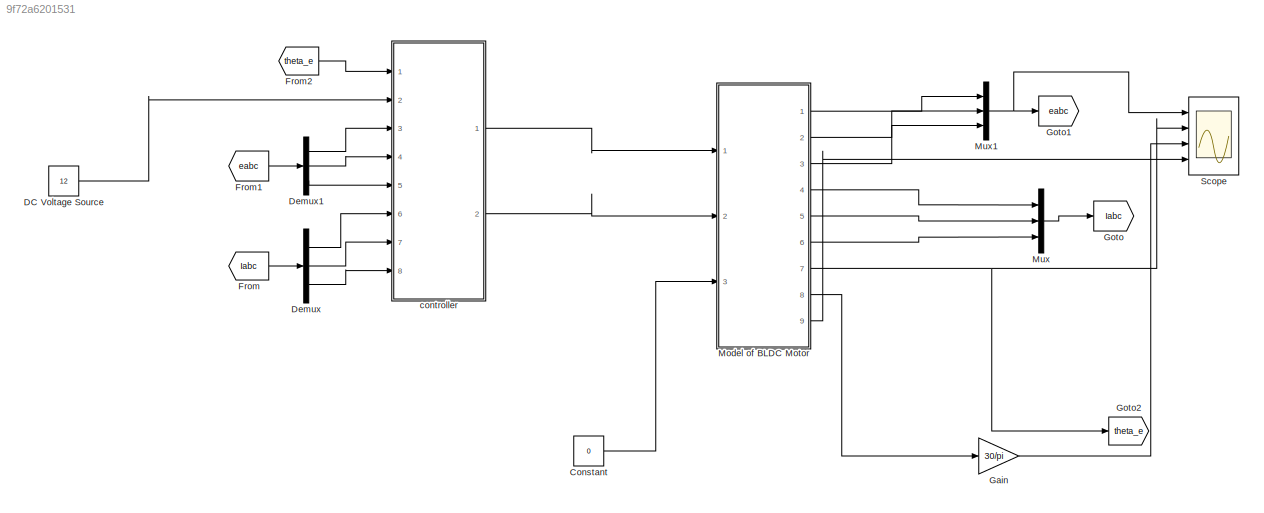
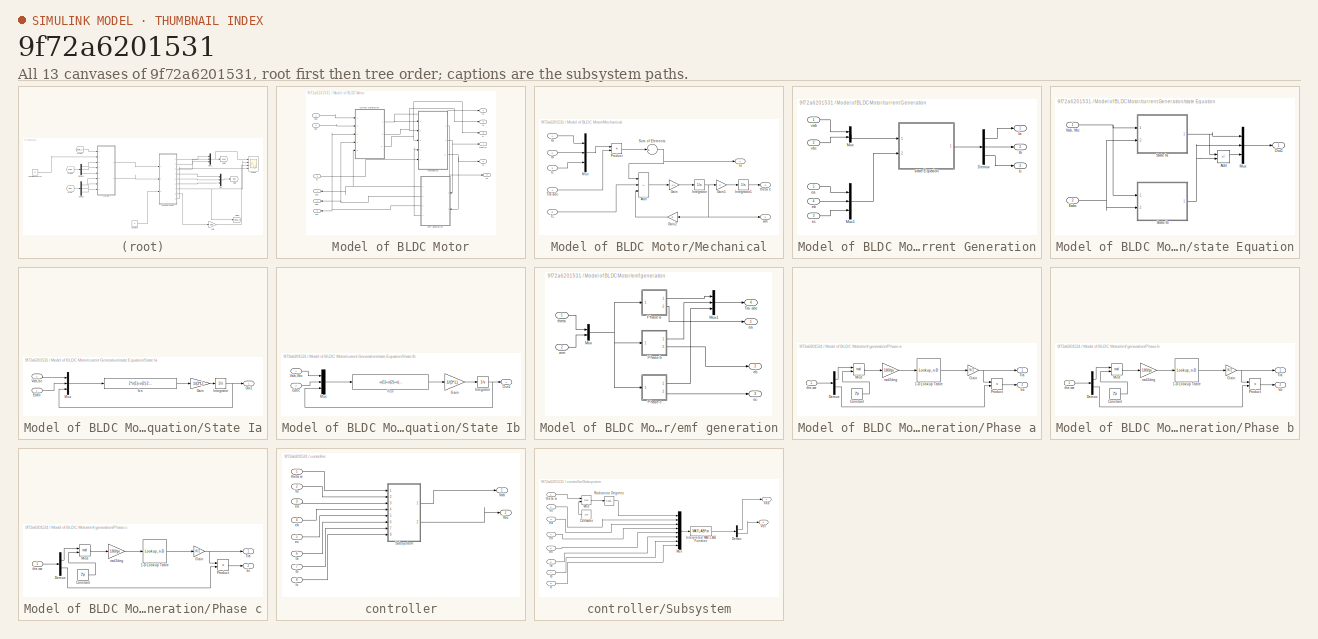
[diagram: thumbnail index - all 13 canvases of the model, root first then tree order]
MODEL slx_9f72a6201531
KIND model
CONFIG AbsTol = auto
CONFIG EnableMultiTasking = off
CONFIG FixedStep = auto
CONFIG MaxStep = auto
CONFIG MinStep = auto
CONFIG RelTol = 1e-3
CONFIG SampleTimeConstraint = Unconstrained
CONFIG Solver = VariableStepAuto
CONFIG SolverName = VariableStepAuto
CONFIG StartTime = 0.0
CONFIG StopTime = 10.0
WORKSPACE source: mxarray member
WORKSPACE B: Simulink.Parameter (value not decoded)
WORKSPACE J: Simulink.Parameter (value not decoded)
WORKSPACE K: Simulink.Parameter (value not decoded)
WORKSPACE L: Simulink.Parameter (value not decoded)
WORKSPACE P: Simulink.Parameter (value not decoded)
WORKSPACE R: Simulink.Parameter (value not decoded)
BLOCK [Constant] Constant
  Value = 0
BLOCK [Constant] DC Voltage Source
  Value = 12
BLOCK [Demux] Demux
  Outputs = 3
  Ports = [1, 3]
BLOCK [Demux] Demux1
  Outputs = 3
  Ports = [1, 3]
BLOCK [From] From
  GotoTag = Iabc
BLOCK [From] From1
  GotoTag = eabc
BLOCK [From] From2
  GotoTag = theta_e
BLOCK [Gain] Gain
  Gain = 30/pi
BLOCK [Goto] Goto
  GotoTag = Iabc
BLOCK [Goto] Goto1
  GotoTag = eabc
BLOCK [Goto] Goto2
  GotoTag = theta_e
BLOCK [SubSystem] Model of BLDC Motor
  Ports = [3, 9]
  RequestExecContextInheritance = off
BLOCK [Outport] Model of BLDC Motor/Ia
  Port = 4
BLOCK [Outport] Model of BLDC Motor/Ib
  Port = 5
BLOCK [Outport] Model of BLDC Motor/Ic
  Port = 6
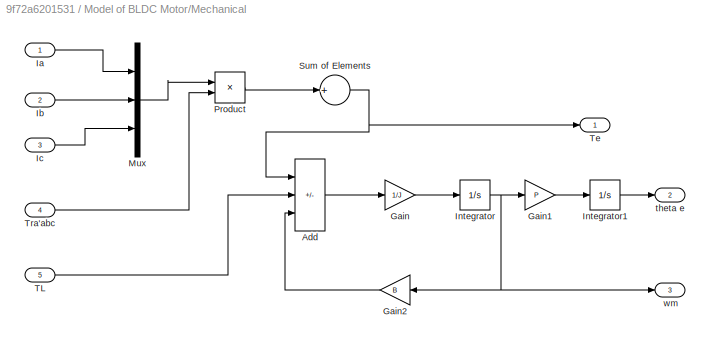
BLOCK [SubSystem] Model of BLDC Motor/Mechanical
  Ports = [5, 3]
  RequestExecContextInheritance = off
BLOCK [Sum] Model of BLDC Motor/Mechanical/Add
  IconShape = rectangular
  Inputs = +--
  Ports = [3, 1]
BLOCK [Gain] Model of BLDC Motor/Mechanical/Gain
  Gain = 1/J
BLOCK [Gain] Model of BLDC Motor/Mechanical/Gain1
  Gain = P
BLOCK [Gain] Model of BLDC Motor/Mechanical/Gain2
  Gain = B
BLOCK [Inport] Model of BLDC Motor/Mechanical/Ia
BLOCK [Inport] Model of BLDC Motor/Mechanical/Ib
  Port = 2
BLOCK [Inport] Model of BLDC Motor/Mechanical/Ic
  Port = 3
BLOCK [Integrator] Model of BLDC Motor/Mechanical/Integrator
  Ports = [1, 1]
BLOCK [Integrator] Model of BLDC Motor/Mechanical/Integrator1
  Ports = [1, 1]
BLOCK [Mux] Model of BLDC Motor/Mechanical/Mux
  DisplayOption = bar
  Inputs = 3
  Ports = [3, 1]
BLOCK [Product] Model of BLDC Motor/Mechanical/Product
  Ports = [2, 1]
BLOCK [Sum] Model of BLDC Motor/Mechanical/Sum of Elements
  Inputs = +
  Ports = [1, 1]
BLOCK [Inport] Model of BLDC Motor/Mechanical/TL
  Port = 5
BLOCK [Outport] Model of BLDC Motor/Mechanical/Te
BLOCK [Inport] Model of BLDC Motor/Mechanical/Tra'abc
  Port = 4
BLOCK [Outport] Model of BLDC Motor/Mechanical/theta e
  Port = 2
BLOCK [Outport] Model of BLDC Motor/Mechanical/wm
  Port = 3
BLOCK [Inport] Model of BLDC Motor/TL
  Port = 3
BLOCK [Outport] Model of BLDC Motor/Te
  Port = 9
BLOCK [Inport] Model of BLDC Motor/Vab
BLOCK [Inport] Model of BLDC Motor/Vbc
  Port = 2
BLOCK [SubSystem] Model of BLDC Motor/current Generation
  Ports = [5, 3]
  RequestExecContextInheritance = off
BLOCK [Demux] Model of BLDC Motor/current Generation/Demux
  Outputs = 3
  Ports = [1, 3]
BLOCK [Outport] Model of BLDC Motor/current Generation/Ia
BLOCK [Outport] Model of BLDC Motor/current Generation/Ib
  Port = 2
BLOCK [Outport] Model of BLDC Motor/current Generation/Ic
  Port = 3
BLOCK [Mux] Model of BLDC Motor/current Generation/Mux
  DisplayOption = bar
  Inputs = 2
  Ports = [2, 1]
BLOCK [Mux] Model of BLDC Motor/current Generation/Mux1
  DisplayOption = bar
  Inputs = 3
  Ports = [3, 1]
BLOCK [Inport] Model of BLDC Motor/current Generation/ea
  Port = 5
BLOCK [Inport] Model of BLDC Motor/current Generation/eb
  Port = 4
BLOCK [Inport] Model of BLDC Motor/current Generation/ec
  Port = 3
BLOCK [SubSystem] Model of BLDC Motor/current Generation/state Equation
  Ports = [2, 1]
  RequestExecContextInheritance = off
BLOCK [Sum] Model of BLDC Motor/current Generation/state Equation/Add
  IconShape = rectangular
  Inputs = --
  Ports = [2, 1]
BLOCK [Inport] Model of BLDC Motor/current Generation/state Equation/Eabc
  Port = 2
BLOCK [Mux] Model of BLDC Motor/current Generation/state Equation/Mux
  DisplayOption = bar
  Inputs = 3
  Ports = [3, 1]
BLOCK [Outport] Model of BLDC Motor/current Generation/state Equation/Out1
BLOCK [SubSystem] Model of BLDC Motor/current Generation/state Equation/State Ia
  Ports = [2, 1]
  RequestExecContextInheritance = off
BLOCK [Inport] Model of BLDC Motor/current Generation/state Equation/State Ia/Eabc
  Port = 2
BLOCK [Gain] Model of BLDC Motor/current Generation/state Equation/State Ia/Gain
  Gain = 1/(3*L)
BLOCK [Integrator] Model of BLDC Motor/current Generation/state Equation/State Ia/Integrator
  Ports = [1, 1]
BLOCK [Mux] Model of BLDC Motor/current Generation/state Equation/State Ia/Mux
  DisplayOption = bar
  Inputs = 3
  Ports = [3, 1]
BLOCK [Outport] Model of BLDC Motor/current Generation/state Equation/State Ia/Out1
BLOCK [Inport] Model of BLDC Motor/current Generation/state Equation/State Ia/Vab,bc
BLOCK [Fcn] Model of BLDC Motor/current Generation/state Equation/State Ia/fcn
  Expr = 2*u(1)+u(2)-2*u(3)+u(4)+u(5)-3*R*u(6)
BLOCK [SubSystem] Model of BLDC Motor/current Generation/state Equation/State Ib
  Ports = [2, 1]
  RequestExecContextInheritance = off
BLOCK [Inport] Model of BLDC Motor/current Generation/state Equation/State Ib/Eabc
  Port = 2
BLOCK [Fcn] Model of BLDC Motor/current Generation/state Equation/State Ib/Fcn
  Expr = -u(1)+u(2)+u(3)-2*u(4)+u(5)-3*R*u(6)
BLOCK [Gain] Model of BLDC Motor/current Generation/state Equation/State Ib/Gain
  Gain = 1/(3*L)
BLOCK [Integrator] Model of BLDC Motor/current Generation/state Equation/State Ib/Integrator
  Ports = [1, 1]
BLOCK [Mux] Model of BLDC Motor/current Generation/state Equation/State Ib/Mux
  DisplayOption = bar
  Inputs = 3
  Ports = [3, 1]
BLOCK [Outport] Model of BLDC Motor/current Generation/state Equation/State Ib/Out1
BLOCK [Inport] Model of BLDC Motor/current Generation/state Equation/State Ib/Vab,Vbc
BLOCK [Inport] Model of BLDC Motor/current Generation/state Equation/Vab, Vbc
BLOCK [Inport] Model of BLDC Motor/current Generation/vab
BLOCK [Inport] Model of BLDC Motor/current Generation/vbc
  Port = 2
BLOCK [Outport] Model of BLDC Motor/ea1
BLOCK [Outport] Model of BLDC Motor/eb1
  Port = 2
BLOCK [Outport] Model of BLDC Motor/ec1
  Port = 3
BLOCK [SubSystem] Model of BLDC Motor/emf generation
  Ports = [2, 4]
  RequestExecContextInheritance = off
BLOCK [Mux] Model of BLDC Motor/emf generation/Mux
  DisplayOption = bar
  Inputs = 2
  Ports = [2, 1]
BLOCK [Mux] Model of BLDC Motor/emf generation/Mux1
  DisplayOption = bar
  Inputs = 3
  Ports = [3, 1]
BLOCK [SubSystem] Model of BLDC Motor/emf generation/Phase a
  Ports = [1, 2]
  RequestExecContextInheritance = off
BLOCK [Lookup_n-D] Model of BLDC Motor/emf generation/Phase a/1-D Lookup Table
  BreakpointsForDimension1 = [-5:5]
  InternalRulePriority = Speed
  NumberOfTableDimensions = 1
  Ports = [1, 1]
  RndMeth = Simplest
  Table = tanh([-5:5])
BLOCK [Constant] Model of BLDC Motor/emf generation/Phase a/Constant
  Value = 2*pi
BLOCK [Demux] Model of BLDC Motor/emf generation/Phase a/Demux
  Outputs = 2
  Ports = [1, 2]
BLOCK [Outport] Model of BLDC Motor/emf generation/Phase a/Ea
  Port = 2
BLOCK [Gain] Model of BLDC Motor/emf generation/Phase a/Gain
  Gain = K/2
BLOCK [Math] Model of BLDC Motor/emf generation/Phase a/Mod
  Operator = mod
  Ports = [2, 1]
BLOCK [Product] Model of BLDC Motor/emf generation/Phase a/Product
  Ports = [2, 1]
BLOCK [Outport] Model of BLDC Motor/emf generation/Phase a/Tra'
BLOCK [Gain] Model of BLDC Motor/emf generation/Phase a/rad2deg
  Gain = 180/pi
BLOCK [Inport] Model of BLDC Motor/emf generation/Phase a/the,we
BLOCK [SubSystem] Model of BLDC Motor/emf generation/Phase b
  Ports = [1, 2]
  RequestExecContextInheritance = off
BLOCK [Lookup_n-D] Model of BLDC Motor/emf generation/Phase b/1-D Lookup Table
  BreakpointsForDimension1 = [-5:5]
  InternalRulePriority = Speed
  NumberOfTableDimensions = 1
  Ports = [1, 1]
  RndMeth = Simplest
  Table = tanh([-5:5])
BLOCK [Constant] Model of BLDC Motor/emf generation/Phase b/Constant
  Value = 2*pi
BLOCK [Demux] Model of BLDC Motor/emf generation/Phase b/Demux
  Outputs = 2
  Ports = [1, 2]
BLOCK [Outport] Model of BLDC Motor/emf generation/Phase b/Eb
  Port = 2
BLOCK [Gain] Model of BLDC Motor/emf generation/Phase b/Gain
  Gain = K/2
BLOCK [Math] Model of BLDC Motor/emf generation/Phase b/Mod
  Operator = mod
  Ports = [2, 1]
BLOCK [Product] Model of BLDC Motor/emf generation/Phase b/Product
  Ports = [2, 1]
BLOCK [Outport] Model of BLDC Motor/emf generation/Phase b/Tra'
BLOCK [Gain] Model of BLDC Motor/emf generation/Phase b/rad2deg
  Gain = 180/pi
BLOCK [Inport] Model of BLDC Motor/emf generation/Phase b/the,we
BLOCK [SubSystem] Model of BLDC Motor/emf generation/Phase c
  Ports = [1, 2]
  RequestExecContextInheritance = off
BLOCK [Lookup_n-D] Model of BLDC Motor/emf generation/Phase c/1-D Lookup Table
  BreakpointsForDimension1 = [-5:5]
  InternalRulePriority = Speed
  NumberOfTableDimensions = 1
  Ports = [1, 1]
  RndMeth = Simplest
  Table = tanh([-5:5])
BLOCK [Constant] Model of BLDC Motor/emf generation/Phase c/Constant
  Value = 2*pi
BLOCK [Demux] Model of BLDC Motor/emf generation/Phase c/Demux
  Outputs = 2
  Ports = [1, 2]
BLOCK [Outport] Model of BLDC Motor/emf generation/Phase c/Ec
  Port = 2
BLOCK [Gain] Model of BLDC Motor/emf generation/Phase c/Gain
  Gain = K/2
BLOCK [Math] Model of BLDC Motor/emf generation/Phase c/Mod
  Operator = mod
  Ports = [2, 1]
BLOCK [Product] Model of BLDC Motor/emf generation/Phase c/Product
  Ports = [2, 1]
BLOCK [Outport] Model of BLDC Motor/emf generation/Phase c/Tra'
BLOCK [Gain] Model of BLDC Motor/emf generation/Phase c/rad2deg
  Gain = 180/pi
BLOCK [Inport] Model of BLDC Motor/emf generation/Phase c/the,we
BLOCK [Outport] Model of BLDC Motor/emf generation/Tra' abc
  Port = 4
BLOCK [Outport] Model of BLDC Motor/emf generation/ea
BLOCK [Outport] Model of BLDC Motor/emf generation/eb
  Port = 2
BLOCK [Outport] Model of BLDC Motor/emf generation/ec
  Port = 3
BLOCK [Inport] Model of BLDC Motor/emf generation/theta
BLOCK [Inport] Model of BLDC Motor/emf generation/wm
  Port = 2
BLOCK [Outport] Model of BLDC Motor/theta e
  Port = 7
BLOCK [Outport] Model of BLDC Motor/w
  Port = 8
BLOCK [Mux] Mux
  DisplayOption = bar
  Inputs = 3
  Ports = [3, 1]
BLOCK [Mux] Mux1
  DisplayOption = bar
  Inputs = 3
  Ports = [3, 1]
BLOCK [Scope] Scope
  Floating = off
  NumInputPorts = 4
  Ports = [4]
  ScopeSpecificationString = Simulink.scopes.TimeScopeBlockCfg('CurrentConfiguration', extmgr.ConfigurationSet(extmgr.Configuration('Core','General UI',true),extmgr.Configuration('Core','Source UI',true),extmgr.Configuration('Sources','WiredSimulink',true),extmgr.Configuration('Visuals','Time Domain',true,'SerializedDisplays',{struct('MinYLimReal','-10','MaxYLimReal','10','YLabelReal','','MinYLimMag','0','MaxYLimMag','10','Le...<+2926ch>
BLOCK [SubSystem] controller
  Ports = [8, 2]
  RequestExecContextInheritance = off
BLOCK [Inport] controller/Ia
  Port = 6
BLOCK [Inport] controller/Ib
  Port = 7
BLOCK [Inport] controller/Ic
  Port = 8
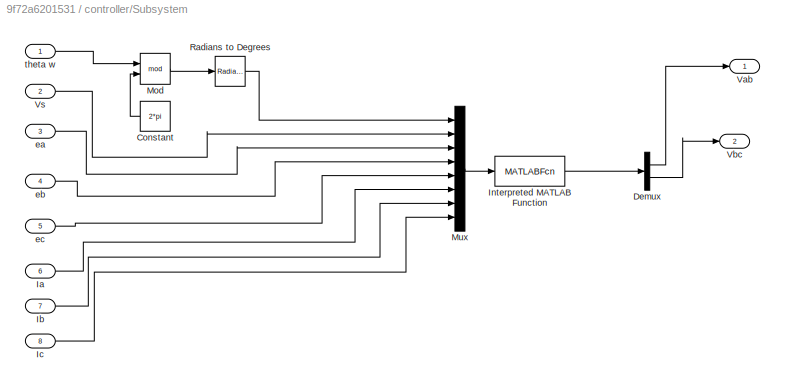
BLOCK [SubSystem] controller/Subsystem
  Ports = [8, 2]
  RequestExecContextInheritance = off
BLOCK [Constant] controller/Subsystem/Constant
  Value = 2*pi
BLOCK [Demux] controller/Subsystem/Demux
  Outputs = 2
  Ports = [1, 2]
BLOCK [Inport] controller/Subsystem/Ia
  Port = 6
BLOCK [Inport] controller/Subsystem/Ib
  Port = 7
BLOCK [Inport] controller/Subsystem/Ic
  Port = 8
BLOCK [MATLABFcn] controller/Subsystem/Interpreted MATLAB Function
  Ports = [1, 1]
BLOCK [Math] controller/Subsystem/Mod
  Operator = mod
  Ports = [2, 1]
BLOCK [Mux] controller/Subsystem/Mux
  DisplayOption = bar
  Inputs = 8
  Ports = [8, 1]
BLOCK [Reference] controller/Subsystem/Radians to Degrees  REF=simulink_extras/Transformations/Radians
to Degrees
  Ports = [1, 1]
  SourceBlock = simulink_extras/Transformations/Radians\nto Degrees
  SourceProductBaseCode = SL
  SourceType = RadiansToDegrees
BLOCK [Outport] controller/Subsystem/Vab
BLOCK [Outport] controller/Subsystem/Vbc
  Port = 2
BLOCK [Inport] controller/Subsystem/Vs
  Port = 2
BLOCK [Inport] controller/Subsystem/ea
  Port = 3
BLOCK [Inport] controller/Subsystem/eb
  Port = 4
BLOCK [Inport] controller/Subsystem/ec
  Port = 5
BLOCK [Inport] controller/Subsystem/theta w
BLOCK [Outport] controller/Vab
BLOCK [Outport] controller/Vbc
  Port = 2
BLOCK [Inport] controller/Vs
  Port = 2
BLOCK [Inport] controller/ea
  Port = 3
BLOCK [Inport] controller/eb
  Port = 4
BLOCK [Inport] controller/ec
  Port = 5
BLOCK [Inport] controller/theta w
LINE Constant:1 -> Model of BLDC Motor:3
LINE DC Voltage Source:1 -> controller:2
LINE Demux1:1 -> controller:3
LINE Demux1:2 -> controller:4
LINE Demux1:3 -> controller:5
LINE Demux:1 -> controller:6
LINE Demux:2 -> controller:7
LINE Demux:3 -> controller:8
LINE From1:1 -> Demux1:1
LINE From2:1 -> controller:1
LINE From:1 -> Demux:1
LINE Gain:1 -> Scope:3
LINE Model of BLDC Motor/Mechanical/Add:1 -> Model of BLDC Motor/Mechanical/Gain:1
LINE Model of BLDC Motor/Mechanical/Gain1:1 -> Model of BLDC Motor/Mechanical/Integrator1:1
LINE Model of BLDC Motor/Mechanical/Gain2:1 -> Model of BLDC Motor/Mechanical/Add:3
LINE Model of BLDC Motor/Mechanical/Gain:1 -> Model of BLDC Motor/Mechanical/Integrator:1
LINE Model of BLDC Motor/Mechanical/Ia:1 -> Model of BLDC Motor/Mechanical/Mux:1
LINE Model of BLDC Motor/Mechanical/Ib:1 -> Model of BLDC Motor/Mechanical/Mux:2
LINE Model of BLDC Motor/Mechanical/Ic:1 -> Model of BLDC Motor/Mechanical/Mux:3
LINE Model of BLDC Motor/Mechanical/Integrator1:1 -> Model of BLDC Motor/Mechanical/theta e:1
NET Model of BLDC Motor/Mechanical/Integrator:1 -> Model of BLDC Motor/Mechanical/Gain1:1, Model of BLDC Motor/Mechanical/Gain2:1, Model of BLDC Motor/Mechanical/wm:1
LINE Model of BLDC Motor/Mechanical/Mux:1 -> Model of BLDC Motor/Mechanical/Product:1
LINE Model of BLDC Motor/Mechanical/Product:1 -> Model of BLDC Motor/Mechanical/Sum of Elements:1
NET Model of BLDC Motor/Mechanical/Sum of Elements:1 -> Model of BLDC Motor/Mechanical/Add:1, Model of BLDC Motor/Mechanical/Te:1
LINE Model of BLDC Motor/Mechanical/TL:1 -> Model of BLDC Motor/Mechanical/Add:2
LINE Model of BLDC Motor/Mechanical/Tra'abc:1 -> Model of BLDC Motor/Mechanical/Product:2
LINE Model of BLDC Motor/Mechanical:1 -> Model of BLDC Motor/Te:1
NET Model of BLDC Motor/Mechanical:2 -> Model of BLDC Motor/emf generation:1, Model of BLDC Motor/theta e:1
NET Model of BLDC Motor/Mechanical:3 -> Model of BLDC Motor/emf generation:2, Model of BLDC Motor/w:1
LINE Model of BLDC Motor/TL:1 -> Model of BLDC Motor/Mechanical:5
LINE Model of BLDC Motor/Vab:1 -> Model of BLDC Motor/current Generation:1
LINE Model of BLDC Motor/Vbc:1 -> Model of BLDC Motor/current Generation:2
LINE Model of BLDC Motor/current Generation/Demux:1 -> Model of BLDC Motor/current Generation/Ia:1
LINE Model of BLDC Motor/current Generation/Demux:2 -> Model of BLDC Motor/current Generation/Ib:1
LINE Model of BLDC Motor/current Generation/Demux:3 -> Model of BLDC Motor/current Generation/Ic:1
LINE Model of BLDC Motor/current Generation/Mux1:1 -> Model of BLDC Motor/current Generation/state Equation:2
LINE Model of BLDC Motor/current Generation/Mux:1 -> Model of BLDC Motor/current Generation/state Equation:1
LINE Model of BLDC Motor/current Generation/ea:1 -> Model of BLDC Motor/current Generation/Mux1:1
LINE Model of BLDC Motor/current Generation/eb:1 -> Model of BLDC Motor/current Generation/Mux1:2
LINE Model of BLDC Motor/current Generation/ec:1 -> Model of BLDC Motor/current Generation/Mux1:3
LINE Model of BLDC Motor/current Generation/state Equation/Add:1 -> Model of BLDC Motor/current Generation/state Equation/Mux:3
NET Model of BLDC Motor/current Generation/state Equation/Eabc:1 -> Model of BLDC Motor/current Generation/state Equation/State Ia:2, Model of BLDC Motor/current Generation/state Equation/State Ib:2
LINE Model of BLDC Motor/current Generation/state Equation/Mux:1 -> Model of BLDC Motor/current Generation/state Equation/Out1:1
LINE Model of BLDC Motor/current Generation/state Equation/State Ia/Eabc:1 -> Model of BLDC Motor/current Generation/state Equation/State Ia/Mux:2
LINE Model of BLDC Motor/current Generation/state Equation/State Ia/Gain:1 -> Model of BLDC Motor/current Generation/state Equation/State Ia/Integrator:1
NET Model of BLDC Motor/current Generation/state Equation/State Ia/Integrator:1 -> Model of BLDC Motor/current Generation/state Equation/State Ia/Mux:3, Model of BLDC Motor/current Generation/state Equation/State Ia/Out1:1
LINE Model of BLDC Motor/current Generation/state Equation/State Ia/Mux:1 -> Model of BLDC Motor/current Generation/state Equation/State Ia/fcn:1
LINE Model of BLDC Motor/current Generation/state Equation/State Ia/Vab,bc:1 -> Model of BLDC Motor/current Generation/state Equation/State Ia/Mux:1
LINE Model of BLDC Motor/current Generation/state Equation/State Ia/fcn:1 -> Model of BLDC Motor/current Generation/state Equation/State Ia/Gain:1
NET Model of BLDC Motor/current Generation/state Equation/State Ia:1 -> Model of BLDC Motor/current Generation/state Equation/Add:1, Model of BLDC Motor/current Generation/state Equation/Mux:1
LINE Model of BLDC Motor/current Generation/state Equation/State Ib/Eabc:1 -> Model of BLDC Motor/current Generation/state Equation/State Ib/Mux:2
LINE Model of BLDC Motor/current Generation/state Equation/State Ib/Fcn:1 -> Model of BLDC Motor/current Generation/state Equation/State Ib/Gain:1
LINE Model of BLDC Motor/current Generation/state Equation/State Ib/Gain:1 -> Model of BLDC Motor/current Generation/state Equation/State Ib/Integrator:1
NET Model of BLDC Motor/current Generation/state Equation/State Ib/Integrator:1 -> Model of BLDC Motor/current Generation/state Equation/State Ib/Mux:3, Model of BLDC Motor/current Generation/state Equation/State Ib/Out1:1
LINE Model of BLDC Motor/current Generation/state Equation/State Ib/Mux:1 -> Model of BLDC Motor/current Generation/state Equation/State Ib/Fcn:1
LINE Model of BLDC Motor/current Generation/state Equation/State Ib/Vab,Vbc:1 -> Model of BLDC Motor/current Generation/state Equation/State Ib/Mux:1
NET Model of BLDC Motor/current Generation/state Equation/State Ib:1 -> Model of BLDC Motor/current Generation/state Equation/Add:2, Model of BLDC Motor/current Generation/state Equation/Mux:2
NET Model of BLDC Motor/current Generation/state Equation/Vab, Vbc:1 -> Model of BLDC Motor/current Generation/state Equation/State Ia:1, Model of BLDC Motor/current Generation/state Equation/State Ib:1
LINE Model of BLDC Motor/current Generation/state Equation:1 -> Model of BLDC Motor/current Generation/Demux:1
LINE Model of BLDC Motor/current Generation/vab:1 -> Model of BLDC Motor/current Generation/Mux:1
LINE Model of BLDC Motor/current Generation/vbc:1 -> Model of BLDC Motor/current Generation/Mux:2
NET Model of BLDC Motor/current Generation:1 -> Model of BLDC Motor/Ia:1, Model of BLDC Motor/Mechanical:1
NET Model of BLDC Motor/current Generation:2 -> Model of BLDC Motor/Ib:1, Model of BLDC Motor/Mechanical:2
NET Model of BLDC Motor/current Generation:3 -> Model of BLDC Motor/Ic:1, Model of BLDC Motor/Mechanical:3
LINE Model of BLDC Motor/emf generation/Mux1:1 -> Model of BLDC Motor/emf generation/Tra' abc:1
NET Model of BLDC Motor/emf generation/Mux:1 -> Model of BLDC Motor/emf generation/Phase a:1, Model of BLDC Motor/emf generation/Phase b:1, Model of BLDC Motor/emf generation/Phase c:1
LINE Model of BLDC Motor/emf generation/Phase a/1-D Lookup Table:1 -> Model of BLDC Motor/emf generation/Phase a/Gain:1
LINE Model of BLDC Motor/emf generation/Phase a/Constant:1 -> Model of BLDC Motor/emf generation/Phase a/Mod:2
LINE Model of BLDC Motor/emf generation/Phase a/Demux:1 -> Model of BLDC Motor/emf generation/Phase a/Mod:1
LINE Model of BLDC Motor/emf generation/Phase a/Demux:2 -> Model of BLDC Motor/emf generation/Phase a/Product:2
NET Model of BLDC Motor/emf generation/Phase a/Gain:1 -> Model of BLDC Motor/emf generation/Phase a/Product:1, Model of BLDC Motor/emf generation/Phase a/Tra':1
LINE Model of BLDC Motor/emf generation/Phase a/Mod:1 -> Model of BLDC Motor/emf generation/Phase a/rad2deg:1
LINE Model of BLDC Motor/emf generation/Phase a/Product:1 -> Model of BLDC Motor/emf generation/Phase a/Ea:1
LINE Model of BLDC Motor/emf generation/Phase a/rad2deg:1 -> Model of BLDC Motor/emf generation/Phase a/1-D Lookup Table:1
LINE Model of BLDC Motor/emf generation/Phase a/the,we:1 -> Model of BLDC Motor/emf generation/Phase a/Demux:1
LINE Model of BLDC Motor/emf generation/Phase a:1 -> Model of BLDC Motor/emf generation/Mux1:1
LINE Model of BLDC Motor/emf generation/Phase a:2 -> Model of BLDC Motor/emf generation/ea:1
LINE Model of BLDC Motor/emf generation/Phase b/1-D Lookup Table:1 -> Model of BLDC Motor/emf generation/Phase b/Gain:1
LINE Model of BLDC Motor/emf generation/Phase b/Constant:1 -> Model of BLDC Motor/emf generation/Phase b/Mod:2
LINE Model of BLDC Motor/emf generation/Phase b/Demux:1 -> Model of BLDC Motor/emf generation/Phase b/Mod:1
LINE Model of BLDC Motor/emf generation/Phase b/Demux:2 -> Model of BLDC Motor/emf generation/Phase b/Product:2
NET Model of BLDC Motor/emf generation/Phase b/Gain:1 -> Model of BLDC Motor/emf generation/Phase b/Product:1, Model of BLDC Motor/emf generation/Phase b/Tra':1
LINE Model of BLDC Motor/emf generation/Phase b/Mod:1 -> Model of BLDC Motor/emf generation/Phase b/rad2deg:1
LINE Model of BLDC Motor/emf generation/Phase b/Product:1 -> Model of BLDC Motor/emf generation/Phase b/Eb:1
LINE Model of BLDC Motor/emf generation/Phase b/rad2deg:1 -> Model of BLDC Motor/emf generation/Phase b/1-D Lookup Table:1
LINE Model of BLDC Motor/emf generation/Phase b/the,we:1 -> Model of BLDC Motor/emf generation/Phase b/Demux:1
LINE Model of BLDC Motor/emf generation/Phase b:1 -> Model of BLDC Motor/emf generation/Mux1:2
LINE Model of BLDC Motor/emf generation/Phase b:2 -> Model of BLDC Motor/emf generation/eb:1
LINE Model of BLDC Motor/emf generation/Phase c/1-D Lookup Table:1 -> Model of BLDC Motor/emf generation/Phase c/Gain:1
LINE Model of BLDC Motor/emf generation/Phase c/Constant:1 -> Model of BLDC Motor/emf generation/Phase c/Mod:2
LINE Model of BLDC Motor/emf generation/Phase c/Demux:1 -> Model of BLDC Motor/emf generation/Phase c/Mod:1
LINE Model of BLDC Motor/emf generation/Phase c/Demux:2 -> Model of BLDC Motor/emf generation/Phase c/Product:2
NET Model of BLDC Motor/emf generation/Phase c/Gain:1 -> Model of BLDC Motor/emf generation/Phase c/Product:1, Model of BLDC Motor/emf generation/Phase c/Tra':1
LINE Model of BLDC Motor/emf generation/Phase c/Mod:1 -> Model of BLDC Motor/emf generation/Phase c/rad2deg:1
LINE Model of BLDC Motor/emf generation/Phase c/Product:1 -> Model of BLDC Motor/emf generation/Phase c/Ec:1
LINE Model of BLDC Motor/emf generation/Phase c/rad2deg:1 -> Model of BLDC Motor/emf generation/Phase c/1-D Lookup Table:1
LINE Model of BLDC Motor/emf generation/Phase c/the,we:1 -> Model of BLDC Motor/emf generation/Phase c/Demux:1
LINE Model of BLDC Motor/emf generation/Phase c:1 -> Model of BLDC Motor/emf generation/Mux1:3
LINE Model of BLDC Motor/emf generation/Phase c:2 -> Model of BLDC Motor/emf generation/ec:1
LINE Model of BLDC Motor/emf generation/theta:1 -> Model of BLDC Motor/emf generation/Mux:1
LINE Model of BLDC Motor/emf generation/wm:1 -> Model of BLDC Motor/emf generation/Mux:2
NET Model of BLDC Motor/emf generation:1 -> Model of BLDC Motor/current Generation:5, Model of BLDC Motor/ea1:1
NET Model of BLDC Motor/emf generation:2 -> Model of BLDC Motor/current Generation:4, Model of BLDC Motor/eb1:1
NET Model of BLDC Motor/emf generation:3 -> Model of BLDC Motor/current Generation:3, Model of BLDC Motor/ec1:1
LINE Model of BLDC Motor/emf generation:4 -> Model of BLDC Motor/Mechanical:4
LINE Model of BLDC Motor:1 -> Mux1:1
LINE Model of BLDC Motor:2 -> Mux1:2
LINE Model of BLDC Motor:3 -> Mux1:3
LINE Model of BLDC Motor:4 -> Mux:1
LINE Model of BLDC Motor:5 -> Mux:2
LINE Model of BLDC Motor:6 -> Mux:3
NET Model of BLDC Motor:7 -> Goto2:1, Scope:2
LINE Model of BLDC Motor:8 -> Gain:1
LINE Model of BLDC Motor:9 -> Scope:4
NET Mux1:1 -> Goto1:1, Scope:1
LINE Mux:1 -> Goto:1
LINE controller/Ia:1 -> controller/Subsystem:6
LINE controller/Ib:1 -> controller/Subsystem:7
LINE controller/Ic:1 -> controller/Subsystem:8
LINE controller/Subsystem/Constant:1 -> controller/Subsystem/Mod:2
LINE controller/Subsystem/Demux:1 -> controller/Subsystem/Vab:1
LINE controller/Subsystem/Demux:2 -> controller/Subsystem/Vbc:1
LINE controller/Subsystem/Ia:1 -> controller/Subsystem/Mux:6
LINE controller/Subsystem/Ib:1 -> controller/Subsystem/Mux:7
LINE controller/Subsystem/Ic:1 -> controller/Subsystem/Mux:8
LINE controller/Subsystem/Interpreted MATLAB Function:1 -> controller/Subsystem/Demux:1
LINE controller/Subsystem/Mod:1 -> controller/Subsystem/Radians to Degrees:1
LINE controller/Subsystem/Mux:1 -> controller/Subsystem/Interpreted MATLAB Function:1
LINE controller/Subsystem/Radians to Degrees:1 -> controller/Subsystem/Mux:1
LINE controller/Subsystem/Vs:1 -> controller/Subsystem/Mux:2
LINE controller/Subsystem/ea:1 -> controller/Subsystem/Mux:3
LINE controller/Subsystem/eb:1 -> controller/Subsystem/Mux:4
LINE controller/Subsystem/ec:1 -> controller/Subsystem/Mux:5
LINE controller/Subsystem/theta w:1 -> controller/Subsystem/Mod:1
LINE controller/Subsystem:1 -> controller/Vab:1
LINE controller/Subsystem:2 -> controller/Vbc:1
LINE controller/Vs:1 -> controller/Subsystem:2
LINE controller/ea:1 -> controller/Subsystem:3
LINE controller/eb:1 -> controller/Subsystem:4
LINE controller/ec:1 -> controller/Subsystem:5
LINE controller/theta w:1 -> controller/Subsystem:1
LINE controller:1 -> Model of BLDC Motor:1
LINE controller:2 -> Model of BLDC Motor:2
note: NET lines group one-source signal fan-out (src -> all destinations, sorted); 1:1 wires keep LINE
